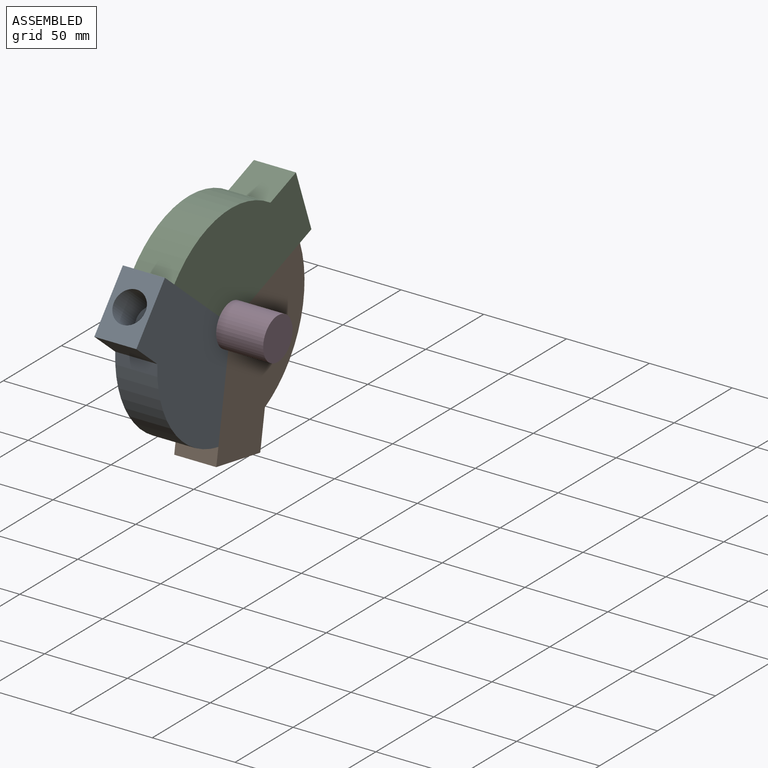
[diagram: assembled view]
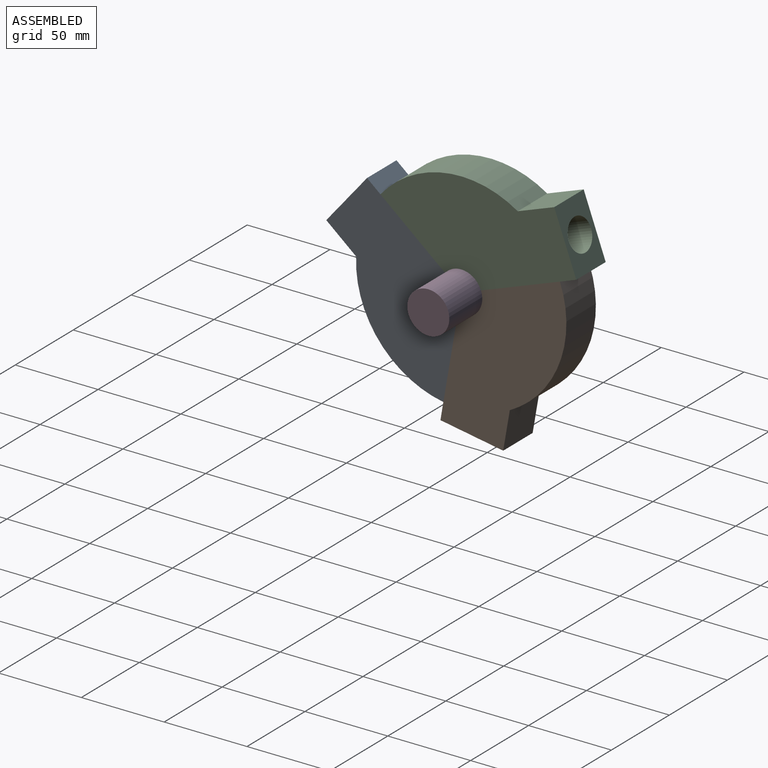
[diagram: assembled view, second angle]
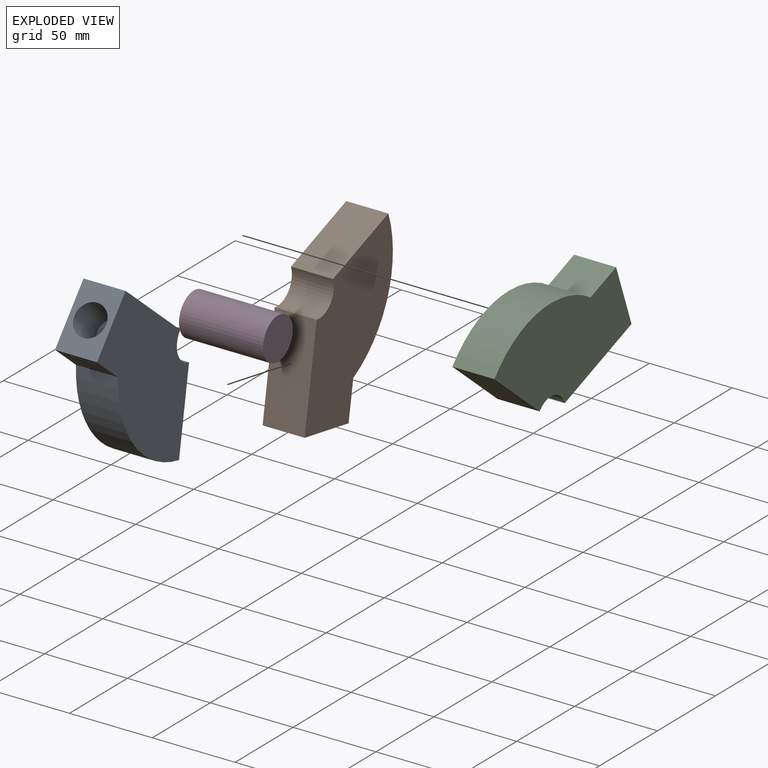
[diagram: exploded view]
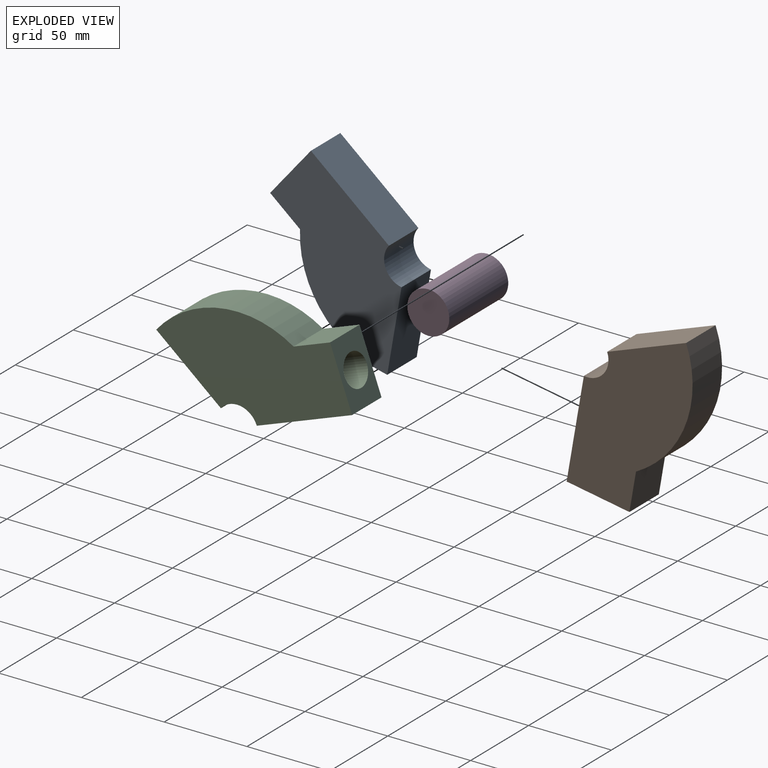
[diagram: exploded view, second angle]
ASSEMBLY  parts=4 mates=6
PART A: 12 faces, bbox 119.1x25.4x64 mm
  f0: plane 33.31x25.4mm, normal (0.87,0,0.5), area 691.9mm2, adj f1,f2,f6,f7,f8
  f1: plane 53.09x30.65mm, normal (0.5,0,-0.87), area 1557.1mm2, adj f0,f5,f6,f7
  f2: plane 25.4x20.33mm, normal (-0.5,0,0.87), area 596.3mm2, adj f0,f3,f6,f7
  f3: cylinder r=63.5mm len=79.52mm, axis (0,1,0), area 2328.6mm2, adj f2,f4,f6,f7
  f4: plane 43.99x25.4mm, normal (-0.5,0,-0.87), area 1290.3mm2, adj f3,f5,f6,f7
  f5: cylinder r=12.7mm len=25.4mm, axis (0,1,0), area 675.6mm2, adj f1,f4,f6,f7
  f6: plane 119.08x63.96mm, normal (0,-1,0), area 4616.5mm2, adj f0,f1,f2,f3,f4,f5
  f7: plane 119.08x63.96mm, normal (0,1,0), area 4616.5mm2, adj f0,f1,f2,f3,f4,f5
  f8: cylinder r=9.53mm len=31.52mm, axis (0.87,0,0.5), area 1520.1mm2, adj f0,f9
  f9: plane 19.05x16.5mm, normal (0.87,0,0.5), area 253.4mm2, adj f8,f11
  f10: plane 6.35x5.5mm, normal (0.87,0,0.5), area 31.7mm2, adj f11
  f11: cylinder r=3.17mm len=25.17mm, axis (0.87,0,0.5), area 506.7mm2, adj f9,f10
PART B: same geometry as A
PART C: same geometry as A
PART D: 3 faces, bbox 25.4x50.8x25.4 mm
  f0: cylinder r=12.7mm len=50.8mm, axis (0,1,0), area 4053.7mm2, adj f1,f2
  f1: plane 25.4x25.4mm, normal (0,-1,0), area 506.7mm2, adj f0
  f2: plane 25.4x25.4mm, normal (0,1,0), area 506.7mm2, adj f0
PLACE A rot(axis=(0.63,-0.63,0.44),132.3deg) t=(9.71,0,0)mm
PLACE B rot(axis=(-0.67,0.67,0.31),145.1deg) t=(9.71,0,0)mm
PLACE C rot(axis=(-0.08,0.08,0.99),90.4deg) t=(9.71,0,0)mm
PLACE D rot(axis=(-0.63,-0.63,-0.46),130.4deg) t=(50.8,17.31,-70.66)mm
MATE planar B.f1 <-> A.f4  axis (0,-0.99,0.17) through (22.41,-7.36,-42.72)mm
MATE planar B.f6 <-> C.f6  axis (1,0,0) through (22.41,25.69,-28.73)mm
MATE cylindrical A.f3 <-> C.f3  axis (-1,0,0) through (22.41,0,0)mm
MATE planar A.f6 <-> B.f6  axis (1,0,0) through (22.41,-37.73,-7.88)mm
MATE cylindrical C.f3 <-> D.f0  axis (-1,0,0) through (22.41,0,0)mm
MATE planar C.f1 <-> B.f4  axis (0,0.35,-0.94) through (9.71,40.68,14.99)mm
